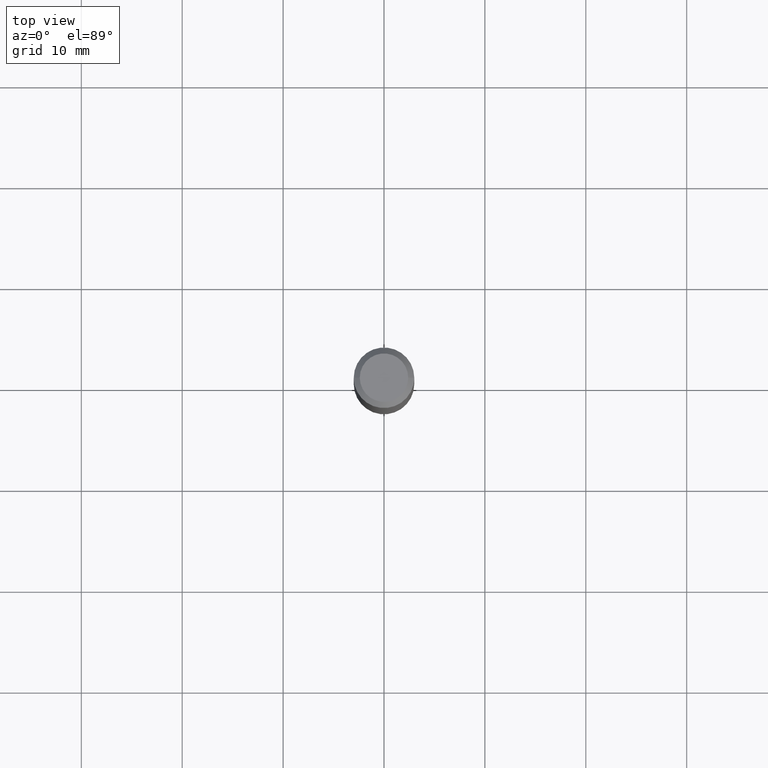
[diagram: clean part render]
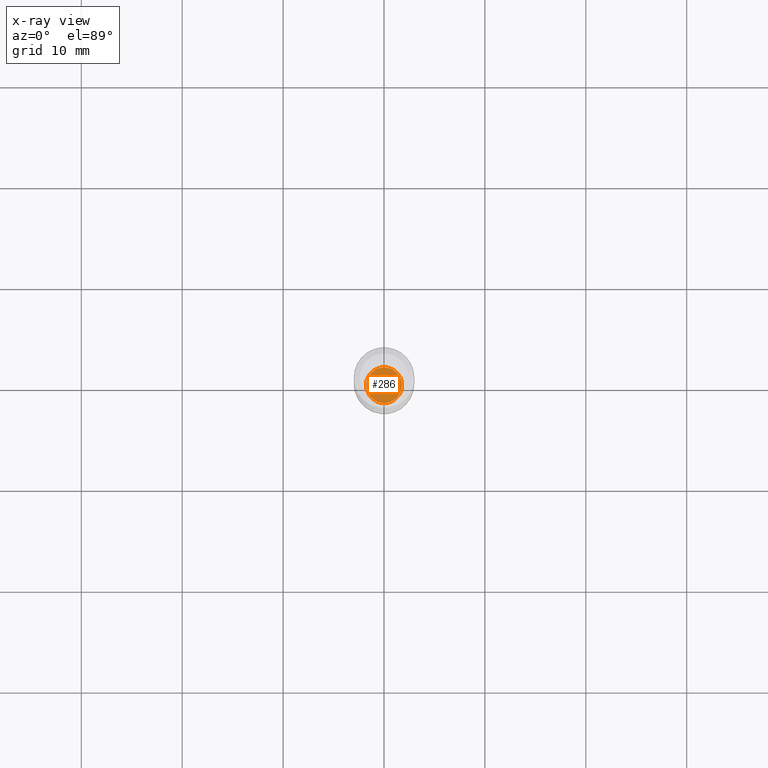
[diagram: x-ray — body ghosted, one internal face saturated and labeled with its STEP entity id]
A machine part, top view, then the same camera in x-ray: the body is ghosted and one INTERNAL B-rep face — a face not visible from any outside direction — is saturated and labeled: STEP entity #286.
In plain terms, the highlighted planar face has unit normal (-0, 0, 1).
Its self-contained STEP definition (entity closure, byte-faithful):
#27 = ORIENTED_EDGE ( 'NONE', *, *, #369, .F. ) ;
#42 = DIRECTION ( 'NONE',  ( -2.445468806185136597E-29, 3.491481338843145583E-15, 1.000000000000000000 ) ) ;
#55 = DIRECTION ( 'NONE',  ( 1.000000000000000000, -6.982962677686265922E-15, 4.876176775795935793E-29 ) ) ;
#56 = VERTEX_POINT ( 'NONE', #448 ) ;
#96 = CARTESIAN_POINT ( 'NONE',  ( 4.139934141990817236E-29, -5.910728758527560286E-15, -1.692899999999999849 ) ) ;
#108 = EDGE_CURVE ( 'NONE', #56, #393, #240, .T. ) ;
#120 = CARTESIAN_POINT ( 'NONE',  ( 4.139934141990817236E-29, -5.910728758527560286E-15, -1.692899999999999849 ) ) ;
#161 = DIRECTION ( 'NONE',  ( 1.000000000000000000, -6.982962677686271444E-15, 0.000000000000000000 ) ) ;
#172 = AXIS2_PLACEMENT_3D ( 'NONE', #96, #396, #175 ) ;
#175 = DIRECTION ( 'NONE',  ( 1.000000000000000000, -6.982962677686271444E-15, 0.000000000000000000 ) ) ;
#210 = CARTESIAN_POINT ( 'NONE',  ( 4.139934141990817236E-29, -5.910728758527560286E-15, -1.692899999999999849 ) ) ;
#240 = CIRCLE ( 'NONE', #466, 0.06980000000000000093 ) ;
#283 = AXIS2_PLACEMENT_3D ( 'NONE', #210, #323, #55 ) ;
#286 = ADVANCED_FACE ( 'NONE', ( #438 ), #475, .F. ) ;
#323 = DIRECTION ( 'NONE',  ( -2.438088387897960049E-29, 3.491481338843145188E-15, 1.000000000000000000 ) ) ;
#334 = EDGE_LOOP ( 'NONE', ( #27, #417 ) ) ;
#369 = EDGE_CURVE ( 'NONE', #393, #56, #386, .T. ) ;
#386 = CIRCLE ( 'NONE', #172, 0.06980000000000000093 ) ;
#393 = VERTEX_POINT ( 'NONE', #471 ) ;
#396 = DIRECTION ( 'NONE',  ( -2.445468806185136597E-29, 3.491481338843145583E-15, 1.000000000000000000 ) ) ;
#417 = ORIENTED_EDGE ( 'NONE', *, *, #108, .F. ) ;
#438 = FACE_OUTER_BOUND ( 'NONE', #334, .T. ) ;
#448 = CARTESIAN_POINT ( 'NONE',  ( -0.06980000000000000093, -5.412120701792899346E-15, -1.692899999999999849 ) ) ;
#466 = AXIS2_PLACEMENT_3D ( 'NONE', #120, #42, #161 ) ;
#471 = CARTESIAN_POINT ( 'NONE',  ( 0.06980000000000000093, -6.398139553430062226E-15, -1.692899999999999849 ) ) ;
#475 = PLANE ( 'NONE',  #283 ) ;